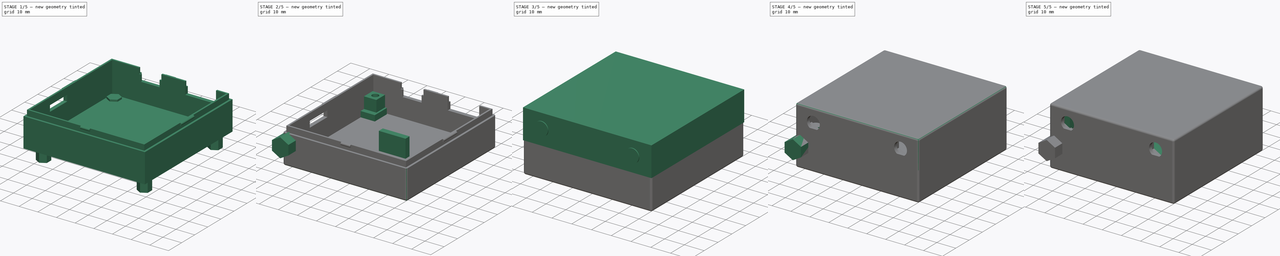
[diagram: build sequence overview — one tinted view per stage of 5, left to right]
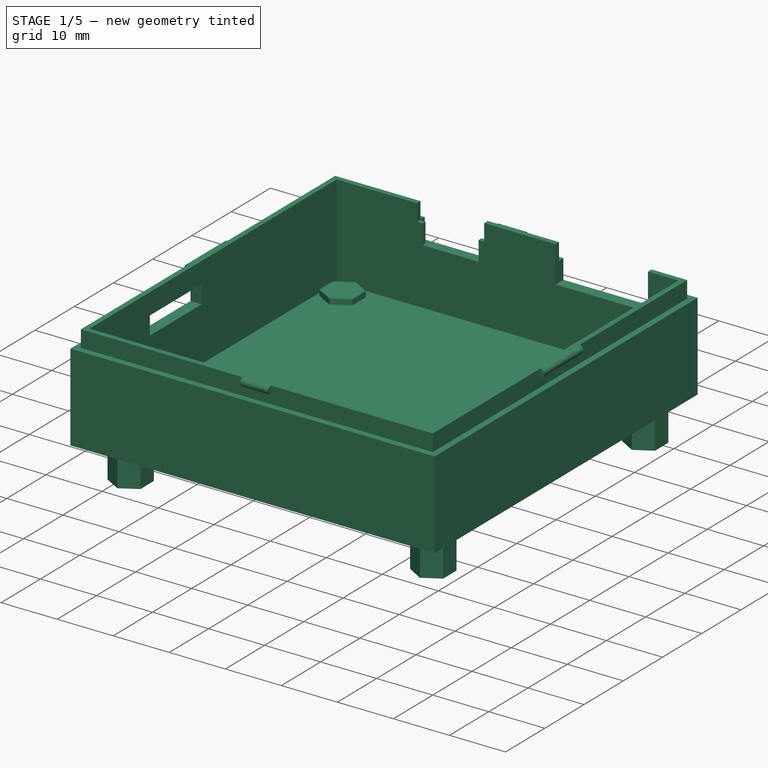
[diagram: stage 1 of 5 — iso view after this stage's code; geometry added in this stage tinted green]
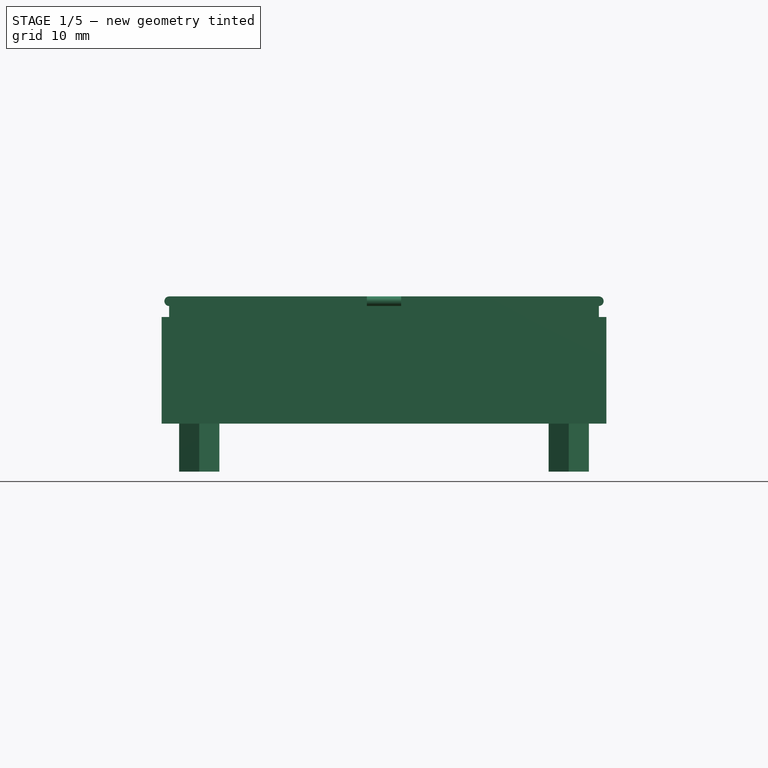
[diagram: stage 1 of 5 — front view after this stage's code; geometry added in this stage tinted green]
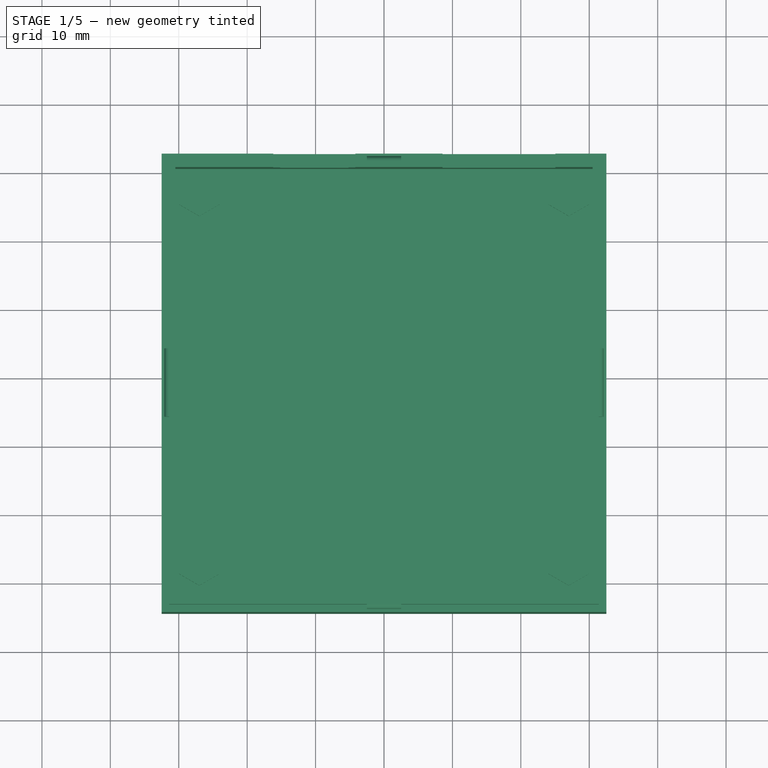
[diagram: stage 1 of 5 — top view after this stage's code; geometry added in this stage tinted green]
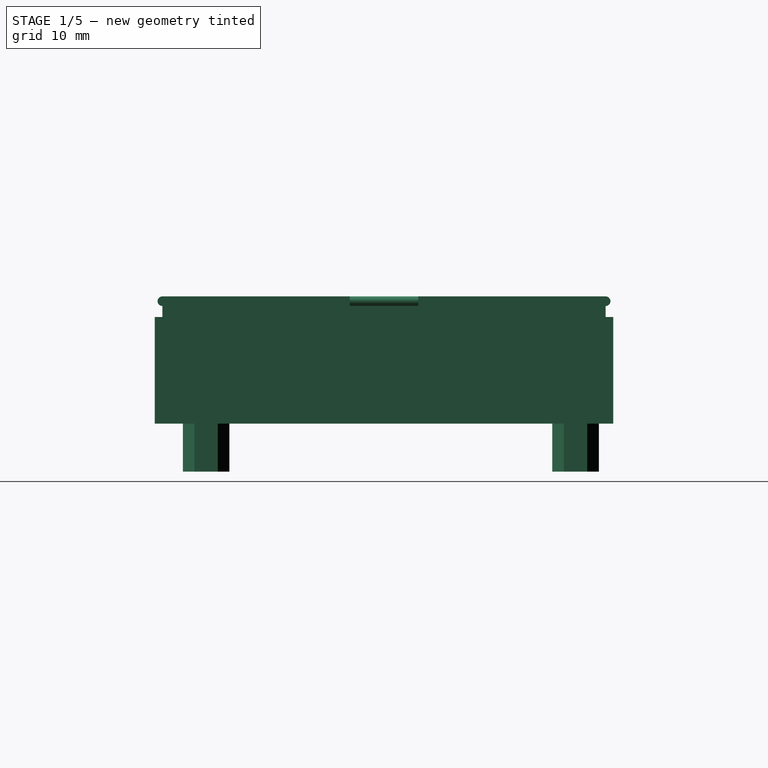
[diagram: stage 1 of 5 — right view after this stage's code; geometry added in this stage tinted green]
FCSTD DOCUMENT  (FreeCAD 0.19R24366 (Git))
Label: housing
License: All rights reserved
LicenseURL: http://en.wikipedia.org/wiki/All_rights_reserved
objects: Part::Box×52, Part::Cut×26, Part::Cylinder×24, Part::MultiFuse×16, PartDesign::Pad×10, Sketcher::SketchObject×7, PartDesign::Body×7, Part::Fillet×3, Part::Common×1
note: 156 computed .brp shape members not serialized (recipe doc carries the construction recipe); baked Part::Feature solids carry a one-line shape summary decoded from their .brp

FEATURE [Part::Box] Box005  label="Cube001"
  AttacherType = Attacher::AttachEngine3D
  Height = 18.6
  Length = 65
  Placement = pos=(-2.5,-4.5,-11) rot=(0,0,1;0rad)
  Width = 67
FEATURE [Part::Box] Box011  label="Cube002"
  AttacherType = Attacher::AttachEngine3D
  Height = 18.6
  Length = 61
  Placement = pos=(-0.5,-2.5,-9) rot=(0,0,1;0rad)
  Width = 63
FEATURE [Part::Cut] Cut001
  Base = -> Box005
  Tool = -> Box011
FEATURE [Part::Box] Box025  label="Eth001"
  AttacherType = Attacher::AttachEngine3D
  Height = 14
  Length = 16.5
  Placement = pos=(38.55,43,1.1) rot=(0,0,1;0rad)
  Width = 21
FEATURE [Part::Cut] Cut007
  Base = -> Cut001
  Tool = -> Box025
FEATURE [Part::Box] Box030  label="USB004"
  AttacherType = Attacher::AttachEngine3D
  Height = 6
  Length = 12
  Placement = pos=(13.82,61.25,1) rot=(0,0,1;0rad)
  Width = 11
FEATURE [Part::Box] Box031  label="USB005"
  AttacherType = Attacher::AttachEngine3D
  Height = 4
  Length = 10
  Placement = pos=(14.82,54,1.1) rot=(0,0,1;0rad)
  Width = 11
FEATURE [Part::MultiFuse] Fusion007
  Shapes = -> [Box031,Box030]
FEATURE [Part::Cut] Cut010
  Base = -> Cut007
  Tool = -> Fusion007
FEATURE [Part::Box] Box032  label="SIM001"
  AttacherType = Attacher::AttachEngine3D
  Height = 3.25
  Length = 14.35
  Placement = pos=(-6,12.9,0.6) rot=(0,0,1;0rad)
  Width = 13.2
FEATURE [Part::Cut] Cut011
  Base = -> Cut010
  Tool = -> Box032
FEATURE [Part::Box] Box033  label="USB006"
  AttacherType = Attacher::AttachEngine3D
  Height = 6
  Length = 12
  Placement = pos=(13.82,59,4.6) rot=(0,0,1;0rad)
  Width = 11
FEATURE [Part::Cut] Cut012
  Base = -> Cut011
  Tool = -> Box033
FEATURE [Part::Box] Box034  label="Cube016"
  AttacherType = Attacher::AttachEngine3D
  Height = 18.6
  Length = 65
  Placement = pos=(-2.5,-4.5,4.6) rot=(0,0,1;0rad)
  Width = 67
FEATURE [Part::Box] Box035  label="Cube017"
  AttacherType = Attacher::AttachEngine3D
  Height = 18.6
  Length = 62.8
  Placement = pos=(-1.4,-3.4,4.6) rot=(0,0,1;0rad)
  Width = 64.8
FEATURE [Part::Cut] Cut013
  Base = -> Box034
  Tool = -> Box035
FEATURE [Part::Cut] Cut014
  Base = -> Cut012
  Tool = -> Cut013
FEATURE [Sketcher::SketchObject] Sketch006
  FullyConstrained = true
  MapMode = 5
  Support = -> [XY_Plane002]
  sketch-geometry (7):
    g0: Circle CenterX=0 CenterY=0 CenterZ=0 NormalX=0 NormalY=0 NormalZ=1 AngleXU=0 Radius=3.4
    g1: LineSegment StartX=-1.7 StartY=2.94449 StartZ=0 EndX=1.7 EndY=2.94449 EndZ=0
    g2: LineSegment StartX=1.7 StartY=2.94449 StartZ=0 EndX=3.4 EndY=3.1e-13 EndZ=0
    g3: LineSegment StartX=3.4 StartY=3.098e-13 StartZ=0 EndX=1.7 EndY=-2.94449 EndZ=0
    g4: LineSegment StartX=1.7 StartY=-2.94449 StartZ=0 EndX=-1.7 EndY=-2.94449 EndZ=0
    g5: LineSegment StartX=-1.7 StartY=-2.94449 StartZ=0 EndX=-3.4 EndY=6.17e-14 EndZ=0
    g6: LineSegment StartX=-3.4 StartY=6.17e-14 StartZ=0 EndX=-1.7 EndY=2.94449 EndZ=0
  constraints (20):
    c: Coincident(g0,g-1)
    c: Radius(g0) = 3.4
    c: Horizontal(g1)
    c: Coincident(g2,g1)
    c: Coincident(g3,g2)
    c: Coincident(g4,g3)
    c: Coincident(g5,g4)
    c: Coincident(g6,g5)
    c: Coincident(g6,g1)
    c: PointOnObject(g1,g0)
    c: PointOnObject(g1,g0)
    c: PointOnObject(g2,g0)
    c: PointOnObject(g3,g0)
    c: PointOnObject(g4,g0)
    c: PointOnObject(g5,g0)
    c: Equal(g4,g3)
    c: Equal(g3,g5)
    c: Equal(g5,g6)
    c: Equal(g6,g1)
    c: Equal(g1,g2)
FEATURE [PartDesign::Pad] Pad006
  Direction = (1,1,1)
  Length = 10
  Length2 = 100
  Profile = -> Sketch006
  Type = 0
FEATURE [PartDesign::Body] Body002  label="Nut001"
  Group = -> [Sketch006,Pad006]
  Origin = -> Origin002
  Placement = pos=(3,3,-18) rot=(0,0,1;0.523599rad)
  Tip = -> Pad006
FEATURE [Sketcher::SketchObject] Sketch007
  FullyConstrained = true
  MapMode = 5
  Support = -> [XY_Plane003]
  sketch-geometry (7):
    g0: Circle CenterX=0 CenterY=0 CenterZ=0 NormalX=0 NormalY=0 NormalZ=1 AngleXU=0 Radius=3.4
    g1: LineSegment StartX=-1.7 StartY=2.94449 StartZ=0 EndX=1.7 EndY=2.94449 EndZ=0
    g2: LineSegment StartX=1.7 StartY=2.94449 StartZ=0 EndX=3.4 EndY=3.1e-13 EndZ=0
    g3: LineSegment StartX=3.4 StartY=3.098e-13 StartZ=0 EndX=1.7 EndY=-2.94449 EndZ=0
    g4: LineSegment StartX=1.7 StartY=-2.94449 StartZ=0 EndX=-1.7 EndY=-2.94449 EndZ=0
    g5: LineSegment StartX=-1.7 StartY=-2.94449 StartZ=0 EndX=-3.4 EndY=6.17e-14 EndZ=0
    g6: LineSegment StartX=-3.4 StartY=6.17e-14 StartZ=0 EndX=-1.7 EndY=2.94449 EndZ=0
  constraints (20):
    c: Coincident(g0,g-1)
    c: Radius(g0) = 3.4
    c: Horizontal(g1)
    c: Coincident(g2,g1)
    c: Coincident(g3,g2)
    c: Coincident(g4,g3)
    c: Coincident(g5,g4)
    c: Coincident(g6,g5)
    c: Coincident(g6,g1)
    c: PointOnObject(g1,g0)
    c: PointOnObject(g1,g0)
    c: PointOnObject(g2,g0)
    c: PointOnObject(g3,g0)
    c: PointOnObject(g4,g0)
    c: PointOnObject(g5,g0)
    c: Equal(g4,g3)
    c: Equal(g3,g5)
    c: Equal(g5,g6)
    c: Equal(g6,g1)
    c: Equal(g1,g2)
FEATURE [PartDesign::Pad] Pad007
  Direction = (1,1,1)
  Length = 10
  Length2 = 100
  Profile = -> Sketch007
  Type = 0
FEATURE [PartDesign::Body] Body003  label="Nut002"
  Group = -> [Sketch007,Pad007]
  Origin = -> Origin003
  Placement = pos=(3,57,-18) rot=(0,0,1;0.523599rad)
  Tip = -> Pad007
FEATURE [Sketcher::SketchObject] Sketch008
  FullyConstrained = true
  MapMode = 5
  Support = -> [XY_Plane004]
  sketch-geometry (7):
    g0: Circle CenterX=0 CenterY=0 CenterZ=0 NormalX=0 NormalY=0 NormalZ=1 AngleXU=0 Radius=3.4
    g1: LineSegment StartX=-1.7 StartY=2.94449 StartZ=0 EndX=1.7 EndY=2.94449 EndZ=0
    g2: LineSegment StartX=1.7 StartY=2.94449 StartZ=0 EndX=3.4 EndY=3.1e-13 EndZ=0
    g3: LineSegment StartX=3.4 StartY=3.098e-13 StartZ=0 EndX=1.7 EndY=-2.94449 EndZ=0
    g4: LineSegment StartX=1.7 StartY=-2.94449 StartZ=0 EndX=-1.7 EndY=-2.94449 EndZ=0
    g5: LineSegment StartX=-1.7 StartY=-2.94449 StartZ=0 EndX=-3.4 EndY=6.17e-14 EndZ=0
    g6: LineSegment StartX=-3.4 StartY=6.17e-14 StartZ=0 EndX=-1.7 EndY=2.94449 EndZ=0
  constraints (20):
    c: Coincident(g0,g-1)
    c: Radius(g0) = 3.4
    c: Horizontal(g1)
    c: Coincident(g2,g1)
    c: Coincident(g3,g2)
    c: Coincident(g4,g3)
    c: Coincident(g5,g4)
    c: Coincident(g6,g5)
    c: Coincident(g6,g1)
    c: PointOnObject(g1,g0)
    c: PointOnObject(g1,g0)
    c: PointOnObject(g2,g0)
    c: PointOnObject(g3,g0)
    c: PointOnObject(g4,g0)
    c: PointOnObject(g5,g0)
    c: Equal(g4,g3)
    c: Equal(g3,g5)
    c: Equal(g5,g6)
    c: Equal(g6,g1)
    c: Equal(g1,g2)
FEATURE [PartDesign::Pad] Pad008
  Direction = (1,1,1)
  Length = 10
  Length2 = 100
  Profile = -> Sketch008
  Type = 0
FEATURE [PartDesign::Body] Body004  label="Nut003"
  Group = -> [Sketch008,Pad008]
  Origin = -> Origin004
  Placement = pos=(57,3,-18) rot=(0,0,1;0.523599rad)
  Tip = -> Pad008
FEATURE [Sketcher::SketchObject] Sketch009
  FullyConstrained = true
  MapMode = 5
  Support = -> [XY_Plane005]
  sketch-geometry (7):
    g0: Circle CenterX=0 CenterY=0 CenterZ=0 NormalX=0 NormalY=0 NormalZ=1 AngleXU=0 Radius=3.4
    g1: LineSegment StartX=-1.7 StartY=2.94449 StartZ=0 EndX=1.7 EndY=2.94449 EndZ=0
    g2: LineSegment StartX=1.7 StartY=2.94449 StartZ=0 EndX=3.4 EndY=3.1e-13 EndZ=0
    g3: LineSegment StartX=3.4 StartY=3.098e-13 StartZ=0 EndX=1.7 EndY=-2.94449 EndZ=0
    g4: LineSegment StartX=1.7 StartY=-2.94449 StartZ=0 EndX=-1.7 EndY=-2.94449 EndZ=0
    g5: LineSegment StartX=-1.7 StartY=-2.94449 StartZ=0 EndX=-3.4 EndY=6.17e-14 EndZ=0
    g6: LineSegment StartX=-3.4 StartY=6.17e-14 StartZ=0 EndX=-1.7 EndY=2.94449 EndZ=0
  constraints (20):
    c: Coincident(g0,g-1)
    c: Radius(g0) = 3.4
    c: Horizontal(g1)
    c: Coincident(g2,g1)
    c: Coincident(g3,g2)
    c: Coincident(g4,g3)
    c: Coincident(g5,g4)
    c: Coincident(g6,g5)
    c: Coincident(g6,g1)
    c: PointOnObject(g1,g0)
    c: PointOnObject(g1,g0)
    c: PointOnObject(g2,g0)
    c: PointOnObject(g3,g0)
    c: PointOnObject(g4,g0)
    c: PointOnObject(g5,g0)
    c: Equal(g4,g3)
    c: Equal(g3,g5)
    c: Equal(g5,g6)
    c: Equal(g6,g1)
    c: Equal(g1,g2)
FEATURE [PartDesign::Pad] Pad009
  Direction = (1,1,1)
  Length = 10
  Length2 = 100
  Profile = -> Sketch009
  Type = 0
FEATURE [PartDesign::Body] Body005  label="Nut004"
  Group = -> [Sketch009,Pad009]
  Origin = -> Origin005
  Placement = pos=(57,57,-18) rot=(0,0,1;0.523599rad)
  Tip = -> Pad009
FEATURE [Part::MultiFuse] Fusion012
  Shapes = -> [Body005,Body002,Body003,Body004]
FEATURE [Part::Cylinder] Cylinder025
  Angle = 360
  AttacherType = Attacher::AttachEngine3D
  Height = 5
  Placement = pos=(27.5,-3.4,6.9) rot=(0,1,0;1.5708rad)
  Radius = 0.7
FEATURE [Part::Cylinder] Cylinder026
  Angle = 360
  AttacherType = Attacher::AttachEngine3D
  Height = 5
  Placement = pos=(27.5,61.4,6.9) rot=(0,1,0;1.5708rad)
  Radius = 0.7
FEATURE [Part::Cylinder] Cylinder027
  Angle = 360
  AttacherType = Attacher::AttachEngine3D
  Height = 10
  Placement = pos=(-1.4,34,6.9) rot=(1,0,0;1.5708rad)
  Radius = 0.7
FEATURE [Part::Cylinder] Cylinder028
  Angle = 360
  AttacherType = Attacher::AttachEngine3D
  Height = 10
  Placement = pos=(61.4,34,6.9) rot=(1,0,0;1.5708rad)
  Radius = 0.7
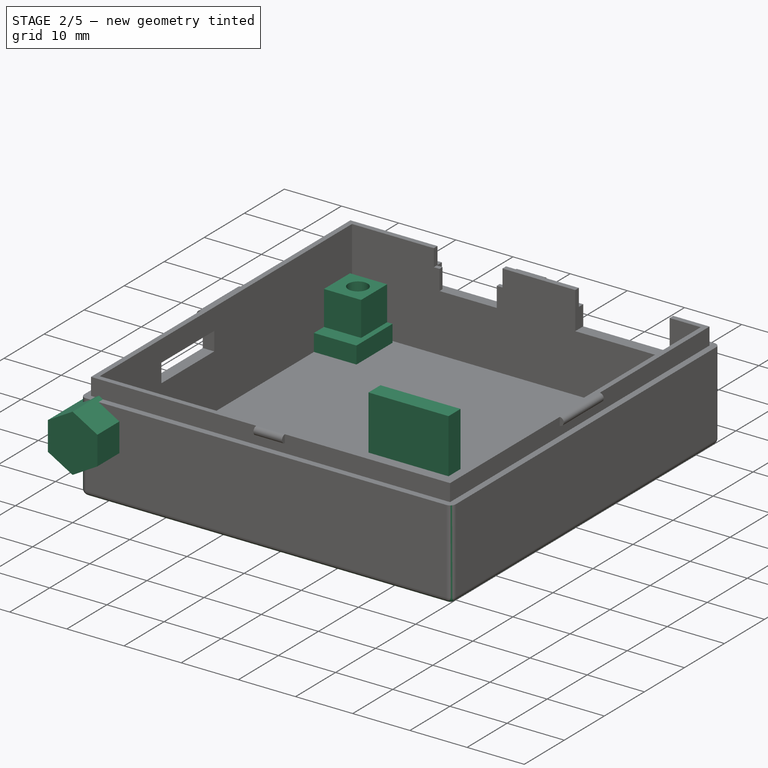
[diagram: stage 2 of 5 — iso view after this stage's code; geometry added in this stage tinted green]
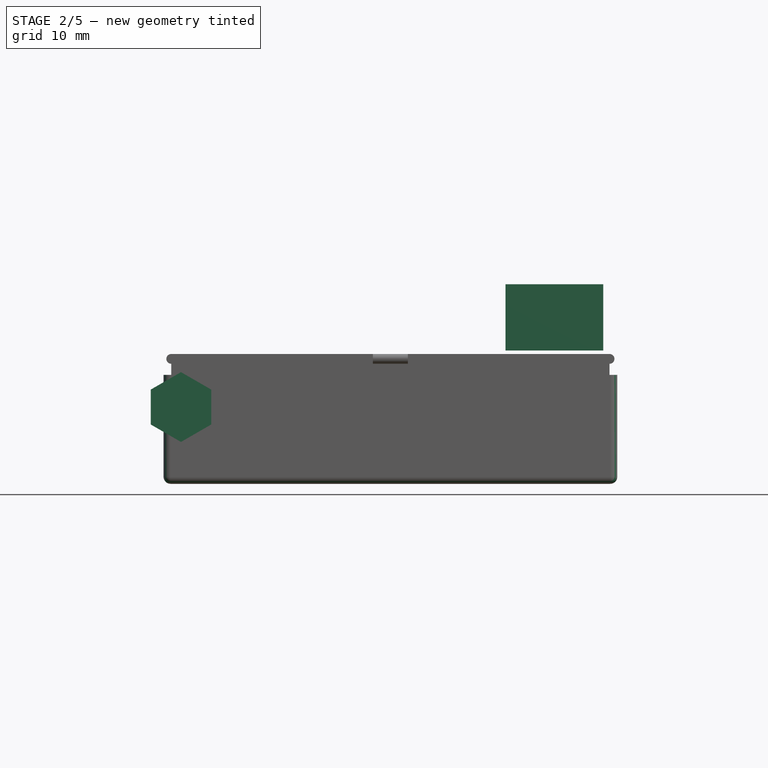
[diagram: stage 2 of 5 — front view after this stage's code; geometry added in this stage tinted green]
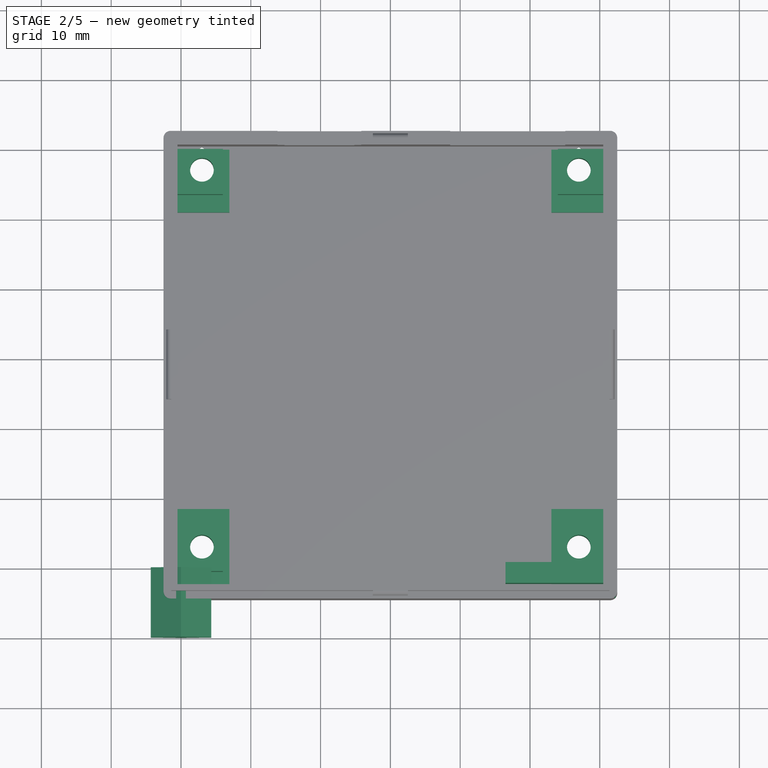
[diagram: stage 2 of 5 — top view after this stage's code; geometry added in this stage tinted green]
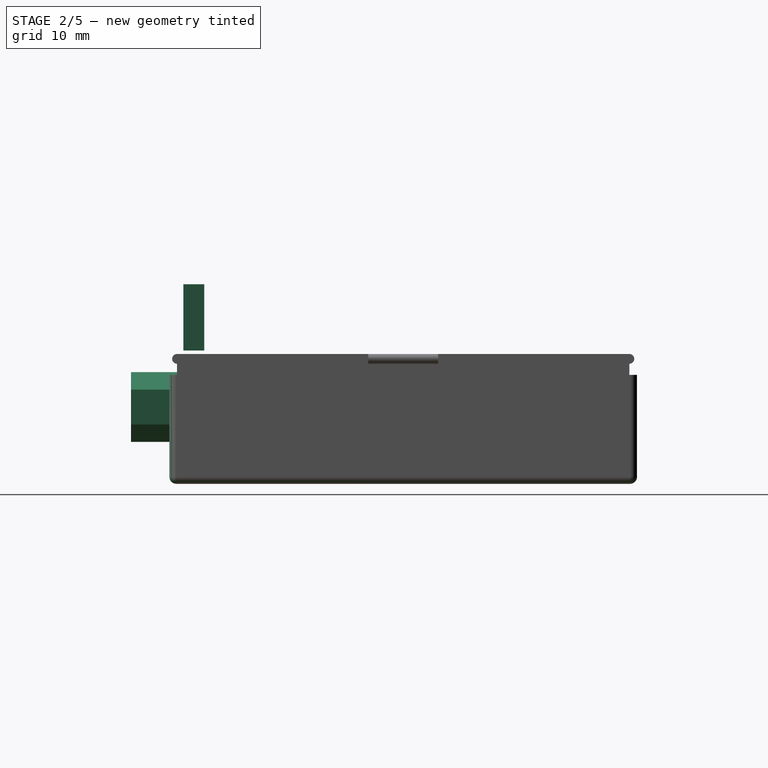
[diagram: stage 2 of 5 — right view after this stage's code; geometry added in this stage tinted green]
FEATURE [Part::Cylinder] Cylinder005
  Angle = 360
  AttacherType = Attacher::AttachEngine3D
  Height = 9
  Placement = pos=(0,0,-9) rot=(0,0,1;0rad)
  Radius = 1.7
FEATURE [Part::Box] Box014  label="Cube005"
  AttacherType = Attacher::AttachEngine3D
  Height = 9
  Length = 6.5
  Placement = pos=(-3.5,-3.5,-9) rot=(0,0,1;0rad)
  Width = 6.5
FEATURE [Part::Box] Box018  label="Cube009"
  AttacherType = Attacher::AttachEngine3D
  Height = 3
  Length = 7.44
  Placement = pos=(-3.5,-5.5,-9) rot=(0,0,1;0rad)
  Width = 11
FEATURE [Part::MultiFuse] Fusion002
  Shapes = -> [Box014,Box018]
FEATURE [Part::Cut] Cut003
  Base = -> Fusion002
  Placement = pos=(3,3,0) rot=(0,0,1;0rad)
  Tool = -> Cylinder005
FEATURE [Part::Cylinder] Cylinder006
  Angle = 360
  AttacherType = Attacher::AttachEngine3D
  Height = 9
  Placement = pos=(0,0,-9) rot=(0,0,1;0rad)
  Radius = 1.7
FEATURE [Part::Box] Box019  label="Cube010"
  AttacherType = Attacher::AttachEngine3D
  Height = 9
  Length = 6.5
  Placement = pos=(-3.5,-3.5,-9) rot=(0,0,1;0rad)
  Width = 6.5
FEATURE [Part::Box] Box020  label="Cube011"
  AttacherType = Attacher::AttachEngine3D
  Height = 3
  Length = 7.44
  Placement = pos=(-3.5,-6,-9) rot=(0,0,1;0rad)
  Width = 9
FEATURE [Part::MultiFuse] Fusion003
  Shapes = -> [Box019,Box020]
FEATURE [Part::Cut] Cut004
  Base = -> Fusion003
  Placement = pos=(3,57,0) rot=(0,0,1;0rad)
  Tool = -> Cylinder006
FEATURE [Part::Cylinder] Cylinder007
  Angle = 360
  AttacherType = Attacher::AttachEngine3D
  Height = 9
  Placement = pos=(0,0,-9) rot=(0,0,1;0rad)
  Radius = 1.7
FEATURE [Part::Box] Box021  label="Cube012"
  AttacherType = Attacher::AttachEngine3D
  Height = 9
  Length = 6.5
  Placement = pos=(-3,-3.5,-9) rot=(0,0,1;0rad)
  Width = 6.5
FEATURE [Part::Box] Box022  label="Cube013"
  AttacherType = Attacher::AttachEngine3D
  Height = 3
  Length = 7.44
  Placement = pos=(-3.94,-5.5,-9) rot=(0,0,1;0rad)
  Width = 11
FEATURE [Part::MultiFuse] Fusion004
  Shapes = -> [Box021,Box022]
FEATURE [Part::Cut] Cut005
  Base = -> Fusion004
  Placement = pos=(57,3,0) rot=(0,0,1;0rad)
  Tool = -> Cylinder007
FEATURE [Part::Cylinder] Cylinder008
  Angle = 360
  AttacherType = Attacher::AttachEngine3D
  Height = 9
  Placement = pos=(0,0,-9) rot=(0,0,1;0rad)
  Radius = 1.7
FEATURE [Part::Box] Box023  label="Cube014"
  AttacherType = Attacher::AttachEngine3D
  Height = 9
  Length = 6.5
  Placement = pos=(-3,-3.5,-9) rot=(0,0,1;0rad)
  Width = 6.5
FEATURE [Part::Box] Box024  label="Cube015"
  AttacherType = Attacher::AttachEngine3D
  Height = 3
  Length = 7.44
  Placement = pos=(-3.94,-6,-9) rot=(0,0,1;0rad)
  Width = 9
FEATURE [Part::MultiFuse] Fusion005
  Shapes = -> [Box023,Box024]
FEATURE [Part::Cut] Cut006
  Base = -> Fusion005
  Placement = pos=(57,57,0) rot=(0,0,1;0rad)
  Tool = -> Cylinder008
FEATURE [Part::MultiFuse] Fusion008
  Shapes = -> [Cut003,Cut004,Cut005,Cut006,Cut014]
FEATURE [Part::Cut] Cut027
  Base = -> Fusion008
  Tool = -> Fusion012
FEATURE [Part::Box] Box057  label="Cube036"
  AttacherType = Attacher::AttachEngine3D
  Height = 9.5
  Length = 14
  Placement = pos=(46.5,-2.5,8.1) rot=(0,0,1;0rad)
  Width = 3
FEATURE [PartDesign::Body] Body006  label="AntHole"
  Group = -> [Sketch010,Pad011,Pad012]
  Origin = -> Origin006
  Tip = -> Pad012
FEATURE [Sketcher::SketchObject] Sketch011
  FullyConstrained = true
  MapMode = 5
  Placement = pos=(0,0,0) rot=(1,0,0;1.5708rad)
  Support = -> [XZ_Plane007]
  sketch-geometry (7):
    g0: Circle CenterX=0 CenterY=0 CenterZ=0 NormalX=0 NormalY=0 NormalZ=1 AngleXU=0 Radius=5
    g1: LineSegment StartX=-4.33013 StartY=2.5 StartZ=0 EndX=-4.33013 EndY=-2.5 EndZ=0
    g2: LineSegment StartX=-4.33013 StartY=-2.5 StartZ=0 EndX=0 EndY=-5 EndZ=0
    g3: LineSegment StartX=0 StartY=-5 StartZ=0 EndX=4.33013 EndY=-2.5 EndZ=0
    g4: LineSegment StartX=4.33013 StartY=-2.5 StartZ=0 EndX=4.33013 EndY=2.5 EndZ=0
    g5: LineSegment StartX=4.33013 StartY=2.5 StartZ=0 EndX=0 EndY=5 EndZ=0
    g6: LineSegment StartX=0 StartY=5 StartZ=0 EndX=-4.33013 EndY=2.5 EndZ=0
  constraints (20):
    c: Coincident(g0,g-1)
    c: Radius(g0) = 5
    c: Vertical(g1)
    c: Coincident(g2,g1)
    c: PointOnObject(g2,g-2)
    c: Coincident(g3,g2)
    c: PointOnObject(g3,g0)
    c: Coincident(g4,g3)
    c: PointOnObject(g4,g0)
    c: Vertical(g4)
    c: Coincident(g5,g4)
    c: PointOnObject(g5,g0)
    c: Coincident(g6,g5)
    c: Coincident(g6,g1)
    c: PointOnObject(g1,g0)
    c: PointOnObject(g1,g0)
    c: PointOnObject(g2,g0)
    c: Equal(g6,g5)
    c: Equal(g5,g4)
    c: Equal(g4,g3)
FEATURE [PartDesign::Pad] Pad013
  Direction = (1,1,1)
  Length = 10
  Length2 = 100
  Placement = pos=(0,0,0) rot=(1,0,0;1.5708rad)
  Profile = -> Sketch011
  Type = 0
FEATURE [PartDesign::Pad] Pad014
  BaseFeature = -> Pad013
  Direction = (1,1,1)
  Length = 10
  Length2 = 100
  Placement = pos=(0,0,0) rot=(1,0,0;1.5708rad)
  Profile = -> Sketch011
  Type = 0
FEATURE [Part::MultiFuse] Fusion018
  Shapes = -> [Cylinder025,Cylinder026,Cylinder027,Cylinder028,Cut027]
FEATURE [Part::Fillet] Fillet003
  Base = -> Fusion018
  Edges = 8 edges r=1: [Edge120,Edge121,Edge122,Edge126,Edge127,Edge128,Edge129,Edge130]
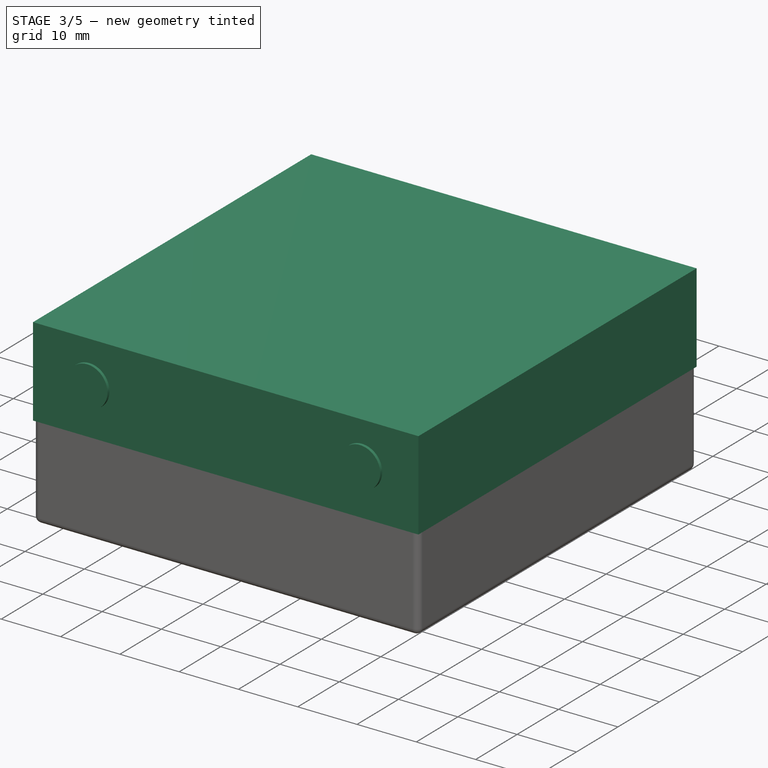
[diagram: stage 3 of 5 — iso view after this stage's code; geometry added in this stage tinted green]
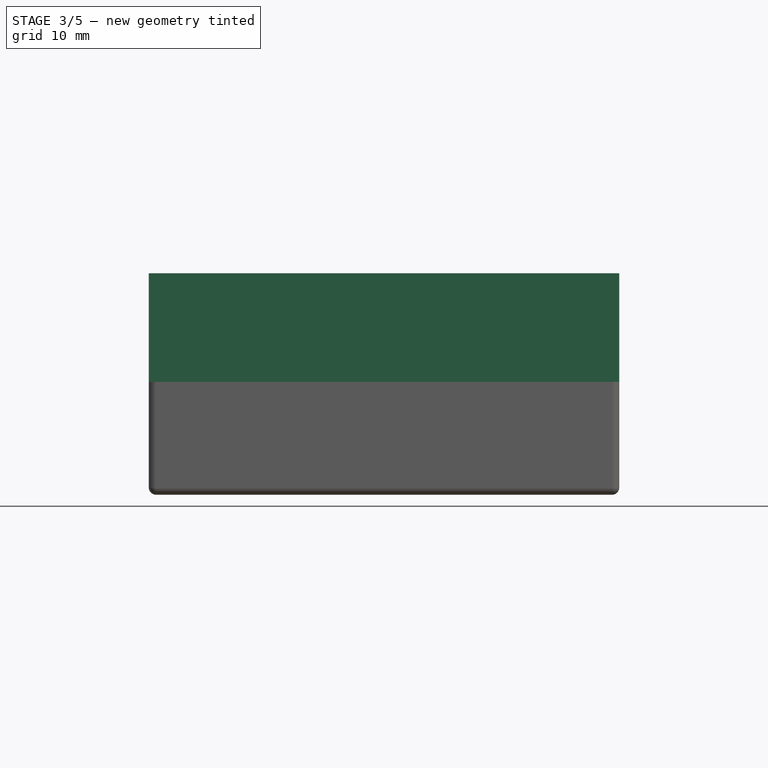
[diagram: stage 3 of 5 — front view after this stage's code; geometry added in this stage tinted green]
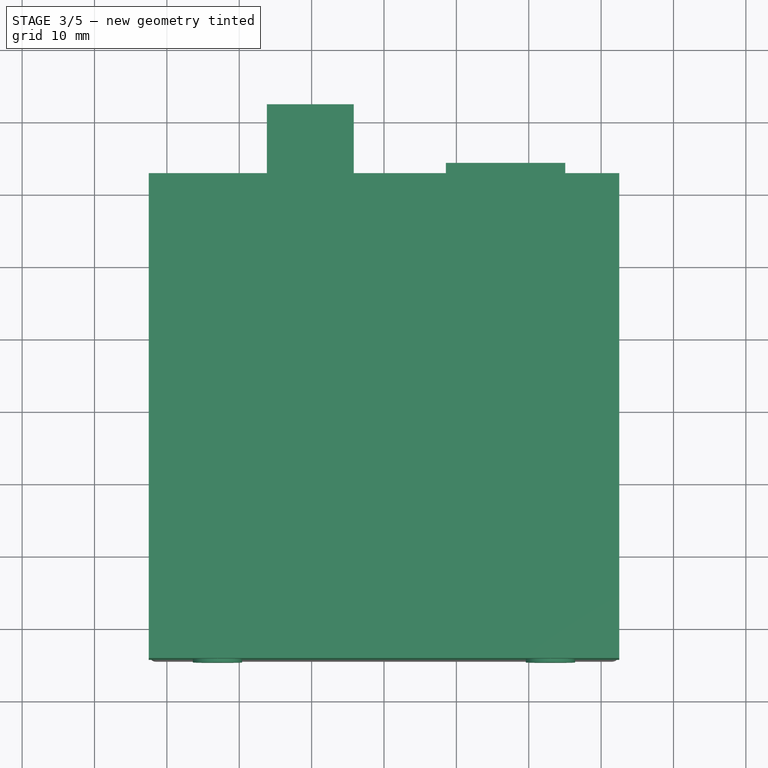
[diagram: stage 3 of 5 — top view after this stage's code; geometry added in this stage tinted green]
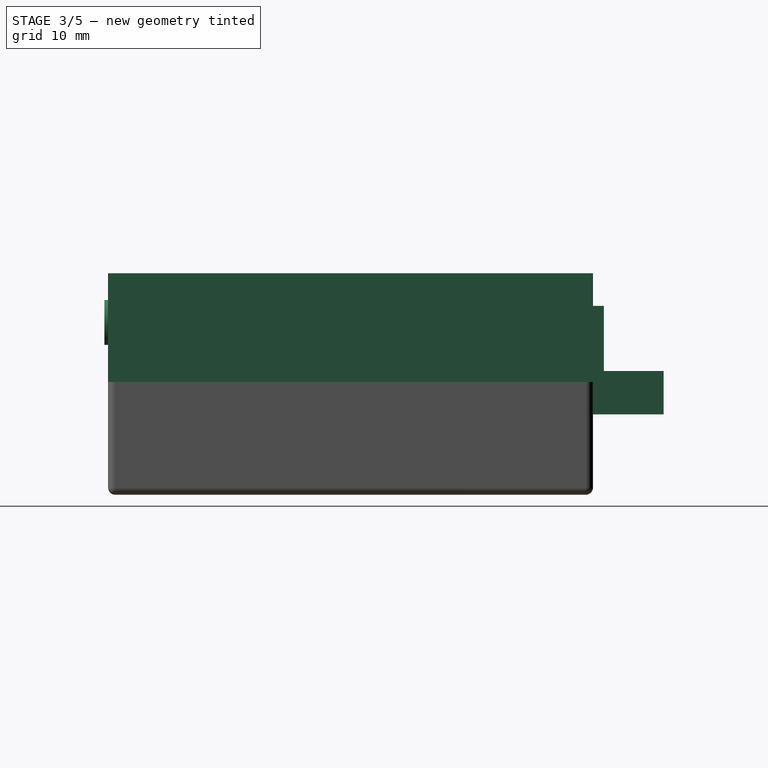
[diagram: stage 3 of 5 — right view after this stage's code; geometry added in this stage tinted green]
FEATURE [Part::Box] Box012  label="Cube003"
  AttacherType = Attacher::AttachEngine3D
  Height = 15
  Length = 65
  Placement = pos=(-2.5,-4.5,4.6) rot=(0,0,1;0rad)
  Width = 67
FEATURE [Part::Box] Box013  label="Cube004"
  AttacherType = Attacher::AttachEngine3D
  Height = 13
  Length = 61
  Placement = pos=(-0.5,-2.5,4.6) rot=(0,0,1;0rad)
  Width = 63
FEATURE [Part::Box] Box026  label="Eth002"
  AttacherType = Attacher::AttachEngine3D
  Height = 14
  Length = 16.5
  Placement = pos=(38.55,43,1.1) rot=(0,0,1;0rad)
  Width = 21
FEATURE [Part::Box] Box028  label="USB002"
  AttacherType = Attacher::AttachEngine3D
  Height = 4
  Length = 10
  Placement = pos=(14.82,54,1.1) rot=(0,0,1;0rad)
  Width = 11
FEATURE [Part::Box] Box029  label="USB003"
  AttacherType = Attacher::AttachEngine3D
  Height = 6
  Length = 12
  Placement = pos=(13.82,61.25,0.1) rot=(0,0,1;0rad)
  Width = 11
FEATURE [Part::MultiFuse] Fusion006
  Shapes = -> [Box028,Box029]
FEATURE [Part::Box] Box037  label="Cube019"
  AttacherType = Attacher::AttachEngine3D
  Height = 11
  Length = 63
  Placement = pos=(-1.5,-3.5,-3.4) rot=(0,0,1;0rad)
  Width = 65
FEATURE [Part::Box] Box038  label="USB007"
  AttacherType = Attacher::AttachEngine3D
  Height = 7.5
  Length = 12
  Placement = pos=(13.82,53,0.1) rot=(0,0,1;0rad)
  Width = 11
FEATURE [Part::Cut] Cut015
  Base = -> Box037
  Tool = -> Box038
FEATURE [Part::Cylinder] Cylinder021
  Angle = 360
  AttacherType = Attacher::AttachEngine3D
  Height = 10
  Placement = pos=(0,0,0) rot=(1,0,0;1.5708rad)
  Radius = 3.4
FEATURE [Part::Box] Box049  label="Cube028"
  AttacherType = Attacher::AttachEngine3D
  Height = 10
  Length = 10
  Placement = pos=(-5,-10,-12.8) rot=(0,0,1;0rad)
  Width = 10
FEATURE [Part::Cut] Cut024
  Base = -> Cylinder021
  Placement = pos=(7,5,12.5) rot=(0,0,1;0rad)
  Tool = -> Box049
FEATURE [Part::Cylinder] Cylinder022
  Angle = 360
  AttacherType = Attacher::AttachEngine3D
  Height = 10
  Placement = pos=(0,0,0) rot=(1,0,0;1.5708rad)
  Radius = 3.4
FEATURE [Part::Box] Box050  label="Cube029"
  AttacherType = Attacher::AttachEngine3D
  Height = 10
  Length = 10
  Placement = pos=(-5,-10,-12.8) rot=(0,0,1;0rad)
  Width = 10
FEATURE [Part::Cut] Cut025
  Base = -> Cylinder022
  Placement = pos=(53,5,12.5) rot=(0,0,1;0rad)
  Tool = -> Box050
FEATURE [Part::MultiFuse] Fusion011
  Shapes = -> [Cut024,Cut025]
FEATURE [Part::Cylinder] Cylinder029
  Angle = 360
  AttacherType = Attacher::AttachEngine3D
  Height = 12
  Placement = pos=(-1.4,35,6.9) rot=(1,0,0;1.5708rad)
  Radius = 0.7
FEATURE [Part::Cylinder] Cylinder030
  Angle = 360
  AttacherType = Attacher::AttachEngine3D
  Height = 7
  Placement = pos=(26.5,-3.4,6.9) rot=(0,1,0;1.5708rad)
  Radius = 0.7
FEATURE [Part::Cylinder] Cylinder031
  Angle = 360
  AttacherType = Attacher::AttachEngine3D
  Height = 7
  Placement = pos=(26.5,61.4,6.9) rot=(0,1,0;1.5708rad)
  Radius = 0.7
FEATURE [Part::Cylinder] Cylinder032
  Angle = 360
  AttacherType = Attacher::AttachEngine3D
  Height = 12
  Placement = pos=(61.4,35,6.9) rot=(1,0,0;1.5708rad)
  Radius = 0.7
FEATURE [Part::MultiFuse] Fusion015
  Shapes = -> [Cylinder032,Cylinder030,Cylinder031,Cylinder029]
FEATURE [Part::Box] Box056  label="Cube035"
  AttacherType = Attacher::AttachEngine3D
  Height = 9.5
  Length = 14
  Placement = pos=(-0.5,-2.5,8.1) rot=(0,0,1;0rad)
  Width = 3
FEATURE [Sketcher::SketchObject] Sketch
  FullyConstrained = true
  MapMode = 5
  Placement = pos=(0,0,0) rot=(1,0,0;1.5708rad)
  Support = -> [XZ_Plane]
  sketch-geometry (7):
    g0: Circle CenterX=0 CenterY=0 CenterZ=0 NormalX=0 NormalY=0 NormalZ=1 AngleXU=0 Radius=5
    g1: LineSegment StartX=-4.33013 StartY=2.5 StartZ=0 EndX=-4.33013 EndY=-2.5 EndZ=0
    g2: LineSegment StartX=-4.33013 StartY=-2.5 StartZ=0 EndX=0 EndY=-5 EndZ=0
    g3: LineSegment StartX=0 StartY=-5 StartZ=0 EndX=4.33013 EndY=-2.5 EndZ=0
    g4: LineSegment StartX=4.33013 StartY=-2.5 StartZ=0 EndX=4.33013 EndY=2.5 EndZ=0
    g5: LineSegment StartX=4.33013 StartY=2.5 StartZ=0 EndX=0 EndY=5 EndZ=0
    g6: LineSegment StartX=0 StartY=5 StartZ=0 EndX=-4.33013 EndY=2.5 EndZ=0
  constraints (20):
    c: Coincident(g0,g-1)
    c: Radius(g0) = 5
    c: Vertical(g1)
    c: Coincident(g2,g1)
    c: PointOnObject(g2,g-2)
    c: Coincident(g3,g2)
    c: PointOnObject(g3,g0)
    c: Coincident(g4,g3)
    c: PointOnObject(g4,g0)
    c: Vertical(g4)
    c: Coincident(g5,g4)
    c: PointOnObject(g5,g0)
    c: Coincident(g6,g5)
    c: Coincident(g6,g1)
    c: PointOnObject(g1,g0)
    c: PointOnObject(g1,g0)
    c: PointOnObject(g2,g0)
    c: Equal(g6,g5)
    c: Equal(g5,g4)
    c: Equal(g4,g3)
FEATURE [PartDesign::Pad] Pad
  Direction = (1,1,1)
  Length = 10
  Length2 = 100
  Placement = pos=(0,0,0) rot=(1,0,0;1.5708rad)
  Profile = -> Sketch
  Type = 0
FEATURE [PartDesign::Pad] Pad010
  BaseFeature = -> Pad
  Direction = (1,1,1)
  Length = 10
  Length2 = 100
  Placement = pos=(0,0,0) rot=(1,0,0;1.5708rad)
  Profile = -> Sketch
  Type = 0
FEATURE [PartDesign::Body] Body007  label="AntHole002"
  Group = -> [Sketch011,Pad013,Pad014]
  Origin = -> Origin007
  Placement = pos=(53,5,12.5) rot=(0,0,1;0rad)
  Tip = -> Pad014
FEATURE [Part::Cut] Cut030
  Base = -> Box056
  Tool = -> Body
FEATURE [Part::Cut] Cut031
  Base = -> Box057
  Tool = -> Body007
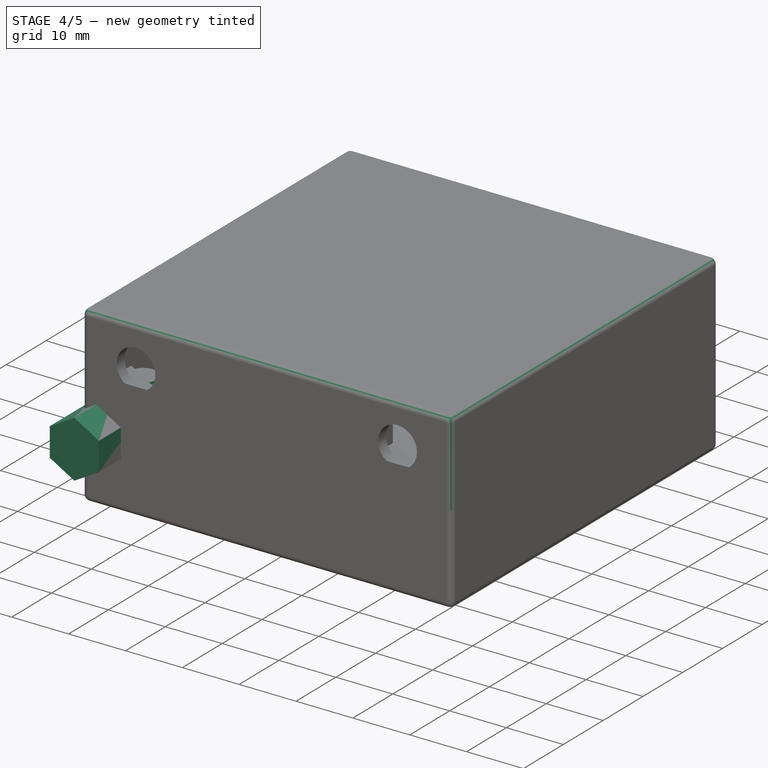
[diagram: stage 4 of 5 — iso view after this stage's code; geometry added in this stage tinted green]
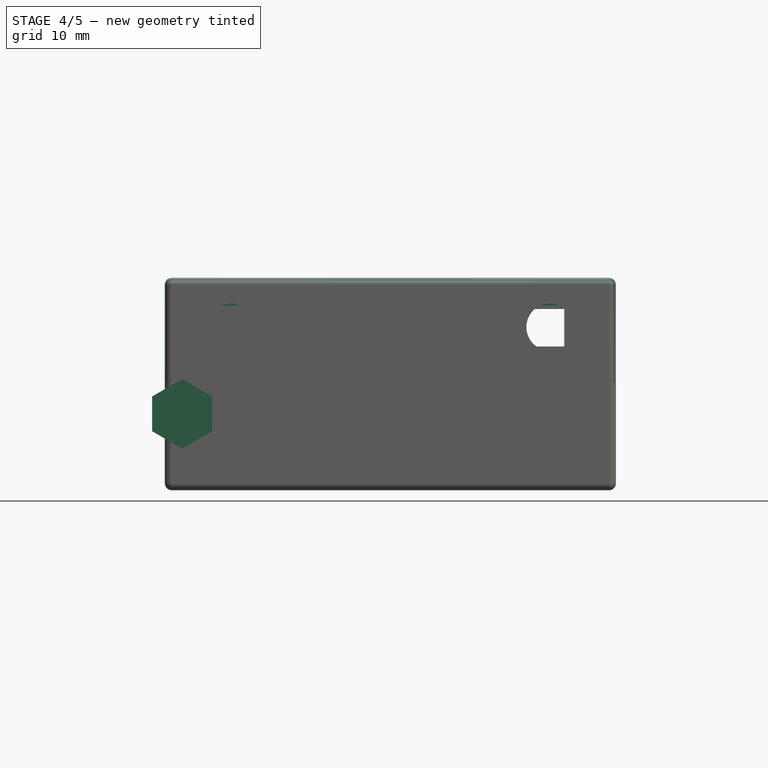
[diagram: stage 4 of 5 — front view after this stage's code; geometry added in this stage tinted green]
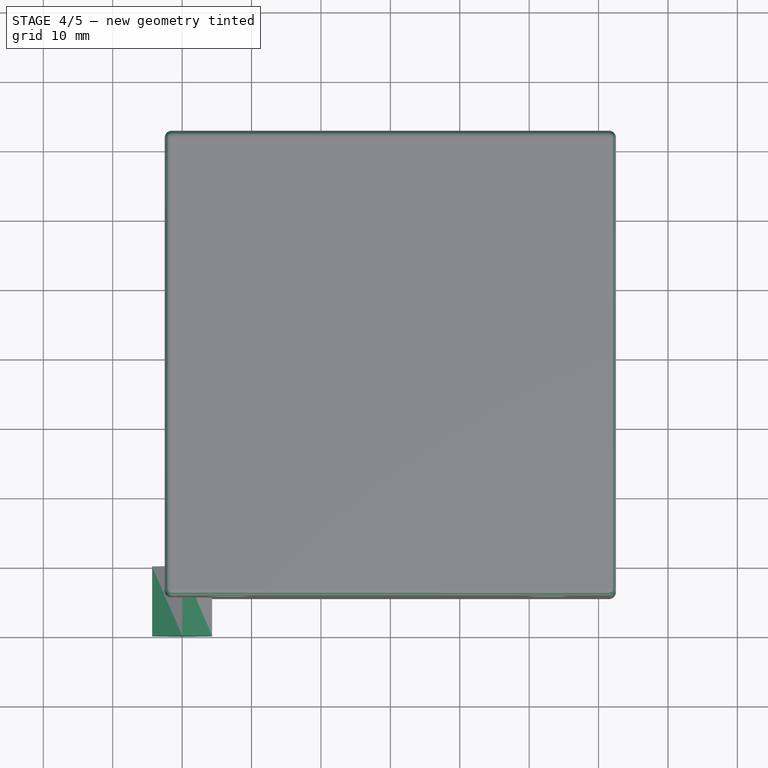
[diagram: stage 4 of 5 — top view after this stage's code; geometry added in this stage tinted green]
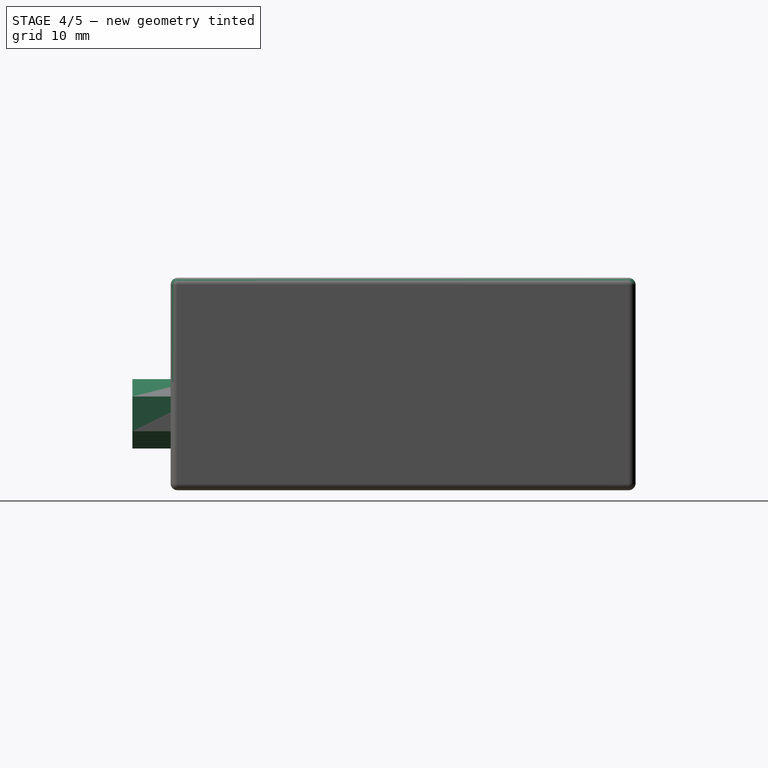
[diagram: stage 4 of 5 — right view after this stage's code; geometry added in this stage tinted green]
FEATURE [Part::Cut] Cut002
  Base = -> Box012
  Tool = -> Box013
FEATURE [Part::Cut] Cut008
  Base = -> Cut002
  Tool = -> Box026
FEATURE [Part::Cut] Cut009
  Base = -> Cut008
  Tool = -> Fusion006
FEATURE [Part::Cut] Cut016
  Base = -> Cut009
  Tool = -> Cut015
FEATURE [Part::Box] Box046  label="Cube026"
  AttacherType = Attacher::AttachEngine3D
  Height = 2
  Length = 10
  Placement = pos=(-0.5,50.5,15.6) rot=(0,0,1;0rad)
  Width = 10
FEATURE [Part::Box] Box047  label="Cube027"
  AttacherType = Attacher::AttachEngine3D
  Height = 2
  Length = 10
  Placement = pos=(50.5,50.5,15.6) rot=(0,0,1;0rad)
  Width = 10
FEATURE [Part::Cylinder] Cylinder017
  Angle = 360
  AttacherType = Attacher::AttachEngine3D
  Height = 6
  Placement = pos=(3,3,1.6) rot=(0,0,1;0rad)
  Radius = 2.5
FEATURE [Part::Cylinder] Cylinder018
  Angle = 360
  AttacherType = Attacher::AttachEngine3D
  Height = 6
  Placement = pos=(57,3,1.6) rot=(0,0,1;0rad)
  Radius = 2.5
FEATURE [Part::Cylinder] Cylinder019
  Angle = 360
  AttacherType = Attacher::AttachEngine3D
  Height = 6
  Placement = pos=(3,57,1.6) rot=(0,0,1;0rad)
  Radius = 2.5
FEATURE [Part::Cylinder] Cylinder020
  Angle = 360
  AttacherType = Attacher::AttachEngine3D
  Height = 6
  Placement = pos=(57,57,1.6) rot=(0,0,1;0rad)
  Radius = 2.5
FEATURE [Part::Cut] Cut026
  Base = -> Cut016
  Tool = -> Fusion011
FEATURE [Part::Cylinder] Cylinder023
  Angle = 360
  AttacherType = Attacher::AttachEngine3D
  Height = 5
  Placement = pos=(27.5,60.5,4) rot=(0,1,0;1.5708rad)
  Radius = 1
FEATURE [Part::Box] Box051  label="Cube030"
  AttacherType = Attacher::AttachEngine3D
  Height = 10
  Length = 10
  Placement = pos=(25,60.5,0) rot=(0,0,1;0rad)
  Width = 10
FEATURE [Part::Cut] Cut028  label="Latch"
  Base = -> Cylinder023
  Placement = pos=(0,0,1.6) rot=(0,0,1;0rad)
  Tool = -> Box051
FEATURE [Part::Box] Box052  label="Cube031"
  AttacherType = Attacher::AttachEngine3D
  Height = 10
  Length = 10
  Placement = pos=(25,60.5,0) rot=(0,0,1;0rad)
  Width = 10
FEATURE [Part::Cylinder] Cylinder024
  Angle = 360
  AttacherType = Attacher::AttachEngine3D
  Height = 5
  Placement = pos=(27.5,60.5,4) rot=(0,1,0;1.5708rad)
  Radius = 1
FEATURE [Part::Common] Common
  Base = -> Box052
  Placement = pos=(0,-1,-0.2) rot=(0,0,1;0rad)
  Tool = -> Cylinder024
FEATURE [Part::Box] Box053  label="Cube032"
  AttacherType = Attacher::AttachEngine3D
  Height = 2
  Length = 5
  Placement = pos=(27.5,58.5,2.8) rot=(0,0,1;0rad)
  Width = 1
FEATURE [Part::Box] Box054  label="Cube033"
  AttacherType = Attacher::AttachEngine3D
  Height = 14.8
  Length = 5
  Placement = pos=(27.5,57.5,2.8) rot=(0,0,1;0rad)
  Width = 1
FEATURE [Part::Box] Box055  label="Cube034"
  AttacherType = Attacher::AttachEngine3D
  Height = 5
  Length = 5
  Placement = pos=(27.5,58.5,12.6) rot=(0,0,1;0rad)
  Width = 2
FEATURE [Part::Fillet] Fillet002
  Base = -> Box055
  Edges = 1 edges r=1: [Edge12]
FEATURE [Part::MultiFuse] Fusion013  label="Clip"
  Shapes = -> [Common,Box053,Box054,Fillet002]
FEATURE [Part::Fillet] Fillet
  Base = -> Cut026
  Edges = 8 edges r=1: [Edge1,Edge2,Edge3,Edge6,Edge7,Edge14,Edge15,Edge25]
FEATURE [Part::Cut] Cut029
  Base = -> Fillet
  Tool = -> Fusion015
FEATURE [PartDesign::Body] Body  label="AntHole001"
  Group = -> [Sketch,Pad,Pad010]
  Origin = -> Origin
  Placement = pos=(7,5,12.5) rot=(0,0,1;0rad)
  Tip = -> Pad010
FEATURE [Sketcher::SketchObject] Sketch010
  FullyConstrained = true
  MapMode = 5
  Placement = pos=(0,0,0) rot=(1,0,0;1.5708rad)
  Support = -> [XZ_Plane006]
  sketch-geometry (7):
    g0: Circle CenterX=0 CenterY=0 CenterZ=0 NormalX=0 NormalY=0 NormalZ=1 AngleXU=0 Radius=5
    g1: LineSegment StartX=-4.33013 StartY=2.5 StartZ=0 EndX=-4.33013 EndY=-2.5 EndZ=0
    g2: LineSegment StartX=-4.33013 StartY=-2.5 StartZ=0 EndX=0 EndY=-5 EndZ=0
    g3: LineSegment StartX=0 StartY=-5 StartZ=0 EndX=4.33013 EndY=-2.5 EndZ=0
    g4: LineSegment StartX=4.33013 StartY=-2.5 StartZ=0 EndX=4.33013 EndY=2.5 EndZ=0
    g5: LineSegment StartX=4.33013 StartY=2.5 StartZ=0 EndX=0 EndY=5 EndZ=0
    g6: LineSegment StartX=0 StartY=5 StartZ=0 EndX=-4.33013 EndY=2.5 EndZ=0
  constraints (20):
    c: Coincident(g0,g-1)
    c: Radius(g0) = 5
    c: Vertical(g1)
    c: Coincident(g2,g1)
    c: PointOnObject(g2,g-2)
    c: Coincident(g3,g2)
    c: PointOnObject(g3,g0)
    c: Coincident(g4,g3)
    c: PointOnObject(g4,g0)
    c: Vertical(g4)
    c: Coincident(g5,g4)
    c: PointOnObject(g5,g0)
    c: Coincident(g6,g5)
    c: Coincident(g6,g1)
    c: PointOnObject(g1,g0)
    c: PointOnObject(g1,g0)
    c: PointOnObject(g2,g0)
    c: Equal(g6,g5)
    c: Equal(g5,g4)
    c: Equal(g4,g3)
FEATURE [PartDesign::Pad] Pad011
  Direction = (1,1,1)
  Length = 10
  Length2 = 100
  Placement = pos=(0,0,0) rot=(1,0,0;1.5708rad)
  Profile = -> Sketch010
  Type = 0
FEATURE [PartDesign::Pad] Pad012
  BaseFeature = -> Pad011
  Direction = (1,1,1)
  Length = 10
  Length2 = 100
  Placement = pos=(0,0,0) rot=(1,0,0;1.5708rad)
  Profile = -> Sketch010
  Type = 0
FEATURE [Part::MultiFuse] Fusion017
  Shapes = -> [Cut030,Cut031,Cut029]
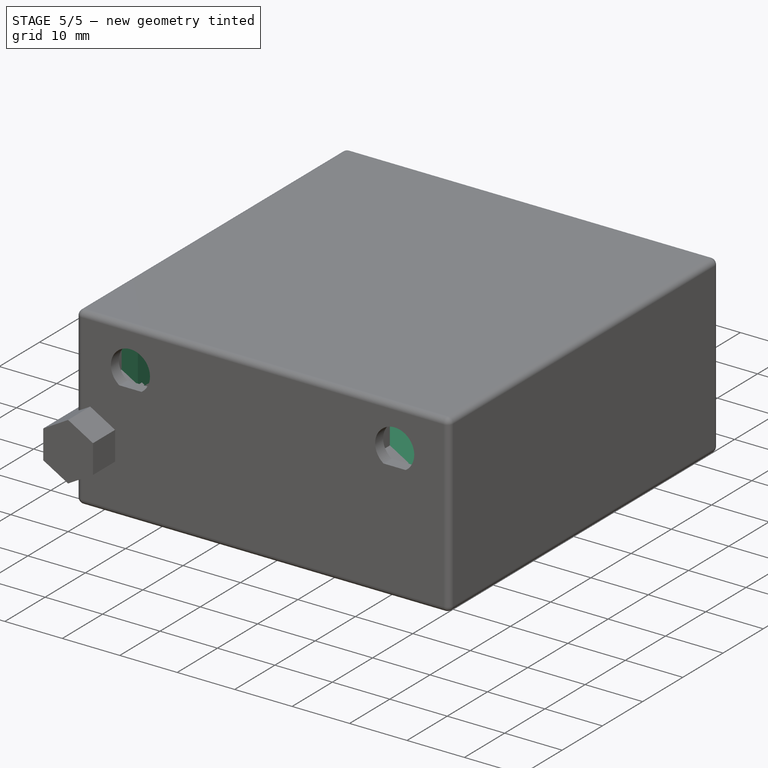
[diagram: stage 5 of 5 — iso view after this stage's code; geometry added in this stage tinted green]
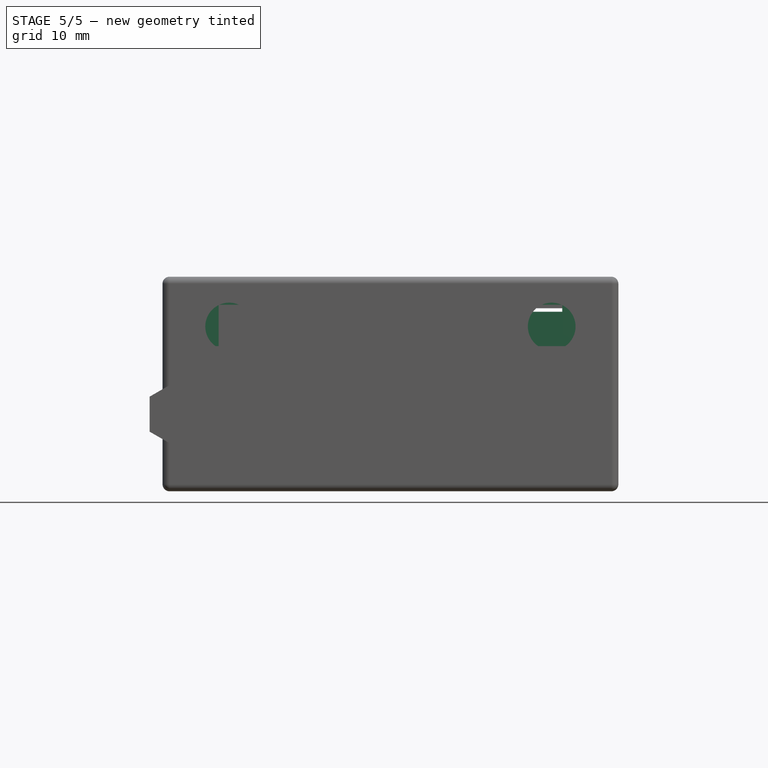
[diagram: stage 5 of 5 — front view after this stage's code; geometry added in this stage tinted green]
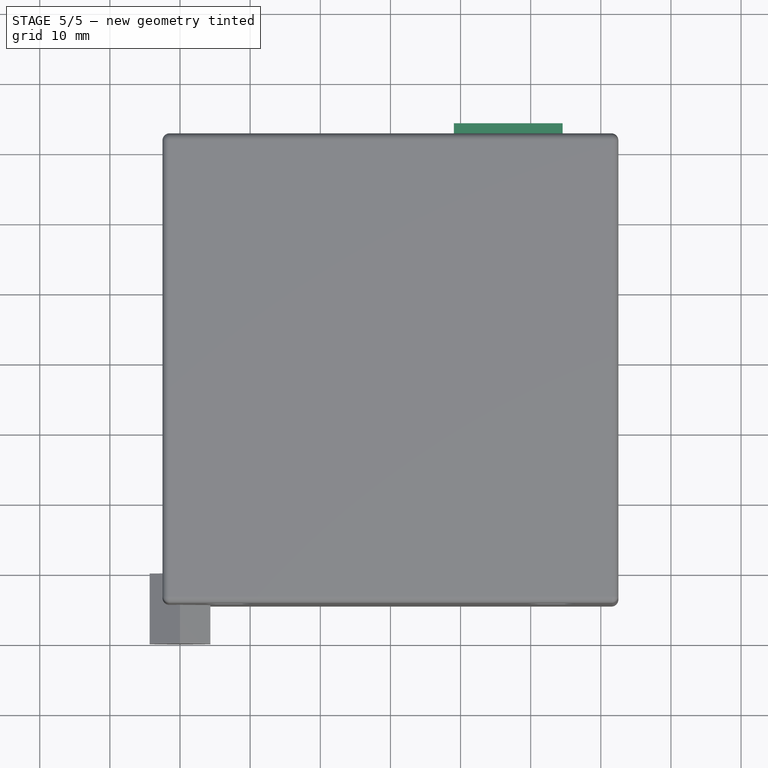
[diagram: stage 5 of 5 — top view after this stage's code; geometry added in this stage tinted green]
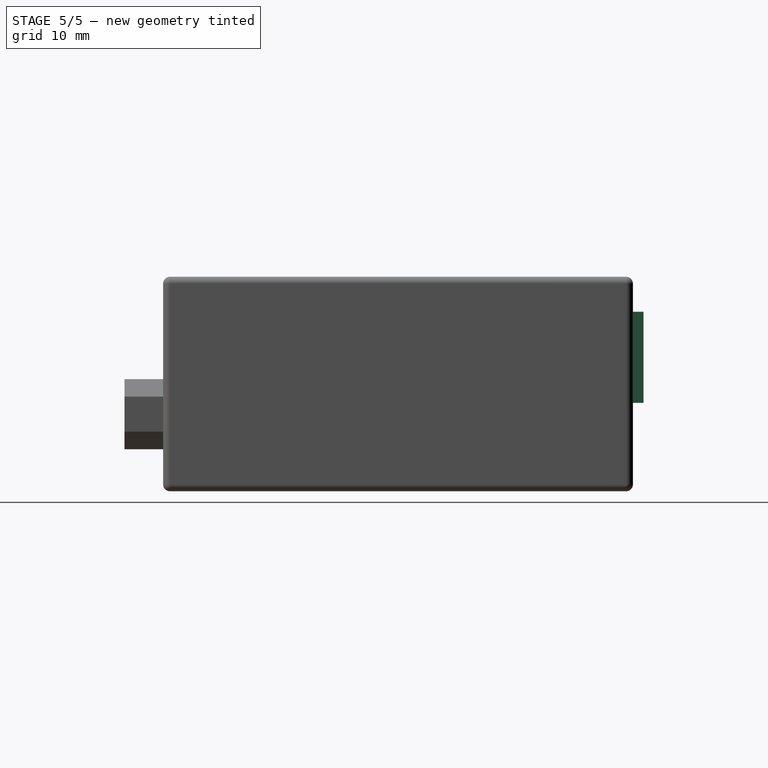
[diagram: stage 5 of 5 — right view after this stage's code; geometry added in this stage tinted green]
FEATURE [Part::Box] Box  label="Cube"
  AttacherType = Attacher::AttachEngine3D
  Height = 1.6
  Length = 60
  Width = 60
FEATURE [Part::Box] Box001  label="Eth"
  AttacherType = Attacher::AttachEngine3D
  Height = 13
  Length = 15.5
  Placement = pos=(39.05,43,1.6) rot=(0,0,1;0rad)
  Width = 21
FEATURE [Part::Box] Box002  label="USB"
  AttacherType = Attacher::AttachEngine3D
  Height = 3
  Length = 9
  Placement = pos=(15.32,50,1.6) rot=(0,0,1;0rad)
  Width = 11
FEATURE [Part::Box] Box003  label="SIM"
  AttacherType = Attacher::AttachEngine3D
  Height = 1.25
  Length = 14.35
  Placement = pos=(0,13.9,1.6) rot=(0,0,1;0rad)
  Width = 11.2
FEATURE [Part::Cylinder] Cylinder
  Angle = 360
  AttacherType = Attacher::AttachEngine3D
  Height = 1.6
  Placement = pos=(3,3,0) rot=(0,0,1;0rad)
  Radius = 1.7
FEATURE [Part::Cylinder] Cylinder001
  Angle = 360
  AttacherType = Attacher::AttachEngine3D
  Height = 1.6
  Placement = pos=(3,57,0) rot=(0,0,1;0rad)
  Radius = 1.7
FEATURE [Part::Cylinder] Cylinder002
  Angle = 360
  AttacherType = Attacher::AttachEngine3D
  Height = 1.6
  Placement = pos=(57,3,0) rot=(0,0,1;0rad)
  Radius = 1.7
FEATURE [Part::Cylinder] Cylinder003
  Angle = 360
  AttacherType = Attacher::AttachEngine3D
  Height = 1.6
  Placement = pos=(57,57,0) rot=(0,0,1;0rad)
  Radius = 1.7
FEATURE [Part::MultiFuse] Fusion
  Shapes = -> [Cylinder003,Cylinder,Cylinder001,Cylinder002]
FEATURE [Part::Cut] Cut  label="PCB"
  Base = -> Box
  Tool = -> Fusion
FEATURE [Part::Box] Box004  label="miniPCIe"
  AttacherType = Attacher::AttachEngine3D
  Height = 5.4
  Length = 30
  Placement = pos=(6.5,2.5,-5.4) rot=(0,0,1;0rad)
  Width = 54.5
FEATURE [Part::Box] Box006  label="LED1"
  AttacherType = Attacher::AttachEngine3D
  Height = 0.8
  Length = 1.6
  Placement = pos=(7.2,59.2,1.6) rot=(0,0,1;0rad)
  Width = 0.8
FEATURE [Part::Box] Box007  label="LED2"
  AttacherType = Attacher::AttachEngine3D
  Height = 0.8
  Length = 1.6
  Placement = pos=(11.4,59.2,1.6) rot=(0,0,1;0rad)
  Width = 0.8
FEATURE [Part::Box] Box008  label="LED3"
  AttacherType = Attacher::AttachEngine3D
  Height = 0.8
  Length = 1.6
  Placement = pos=(26.7,59.2,1.6) rot=(0,0,1;0rad)
  Width = 0.8
FEATURE [Part::Box] Box009  label="LED4"
  AttacherType = Attacher::AttachEngine3D
  Height = 0.8
  Length = 1.6
  Placement = pos=(30.7,59.2,1.6) rot=(0,0,1;0rad)
  Width = 0.8
FEATURE [Part::Box] Box010  label="LED5"
  AttacherType = Attacher::AttachEngine3D
  Height = 0.8
  Length = 1.6
  Placement = pos=(34.7,59.2,1.6) rot=(0,0,1;0rad)
  Width = 0.8
FEATURE [Part::MultiFuse] Fusion001  label="Board"
  Shapes = -> [Box010,Box006,Box007,Box008,Box009,Box004,Cut,Box003,Box001,Box002]
FEATURE [Part::Box] Box040  label="Cube020"
  AttacherType = Attacher::AttachEngine3D
  Height = 10
  Length = 6
  Placement = pos=(-0.5,-0.5,7.6) rot=(0,0,1;0rad)
  Width = 6
FEATURE [Part::Box] Box041  label="Cube021"
  AttacherType = Attacher::AttachEngine3D
  Height = 2
  Length = 10
  Placement = pos=(-0.5,-0.5,15.6) rot=(0,0,1;0rad)
  Width = 10
FEATURE [Part::Box] Box042  label="Cube022"
  AttacherType = Attacher::AttachEngine3D
  Height = 10
  Length = 6
  Placement = pos=(54.5,-0.5,7.6) rot=(0,0,1;0rad)
  Width = 6
FEATURE [Part::Box] Box043  label="Cube023"
  AttacherType = Attacher::AttachEngine3D
  Height = 10
  Length = 6
  Placement = pos=(-0.5,54.5,7.6) rot=(0,0,1;0rad)
  Width = 6
FEATURE [Part::Box] Box044  label="Cube024"
  AttacherType = Attacher::AttachEngine3D
  Height = 10
  Length = 6
  Placement = pos=(54.5,54.5,7.6) rot=(0,0,1;0rad)
  Width = 6
FEATURE [Part::Box] Box045  label="Cube025"
  AttacherType = Attacher::AttachEngine3D
  Height = 2
  Length = 10
  Placement = pos=(50.5,-0.5,15.6) rot=(0,0,1;0rad)
  Width = 10
FEATURE [Part::Box] Box048  label="Eth004"
  AttacherType = Attacher::AttachEngine3D
  Height = 13
  Length = 15.5
  Placement = pos=(39.05,43,1.6) rot=(0,0,1;0rad)
  Width = 21
FEATURE [Part::MultiFuse] Fusion010
  Shapes = -> [Cylinder020,Box040,Box041,Box042,Box043,Box044,Box045,Box046,Box047,Cylinder017,Cylinder018,Cylinder019]
FEATURE [Part::Cut] Cut023
  Base = -> Fusion010
  Tool = -> Box048
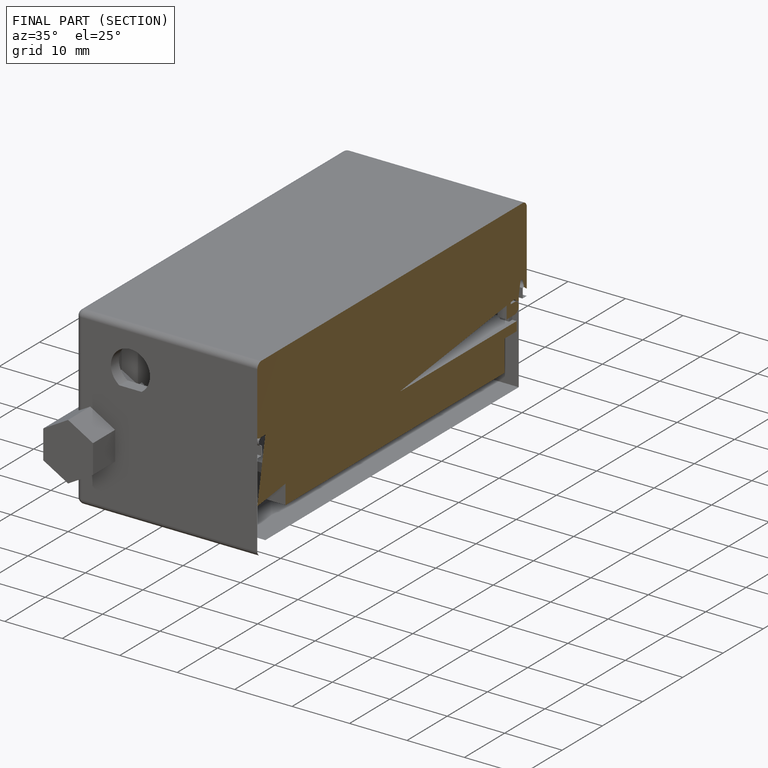
[diagram: finished part — half-section view (interior)]
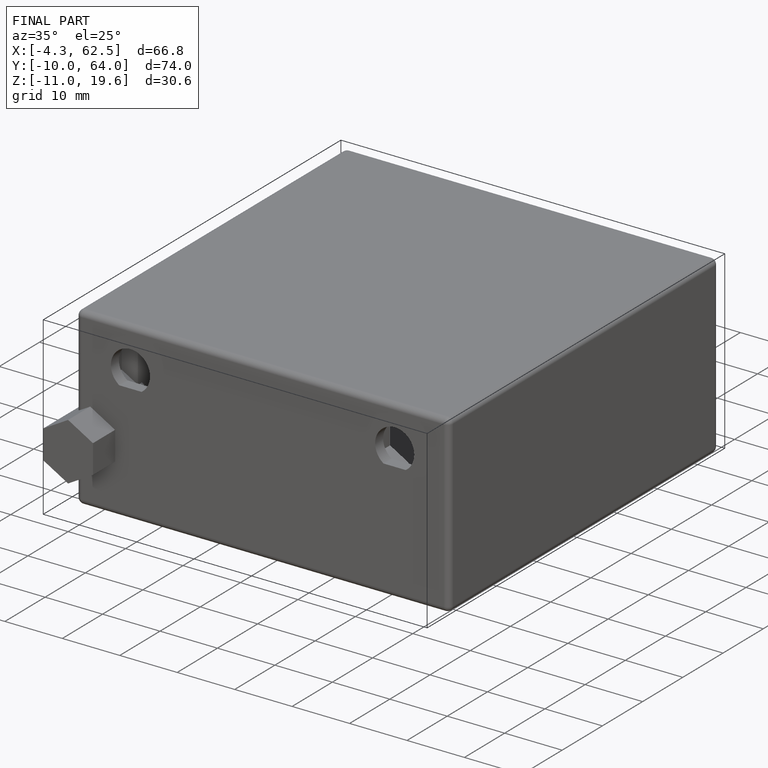
[diagram: finished part — iso view with bounding-box wireframe]
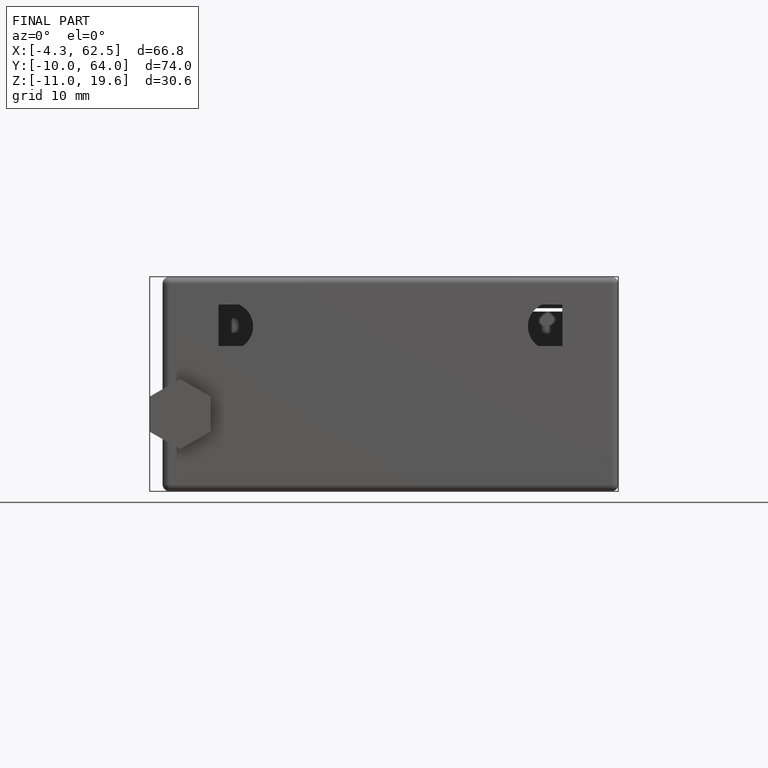
[diagram: finished part — front view with bounding-box wireframe]
